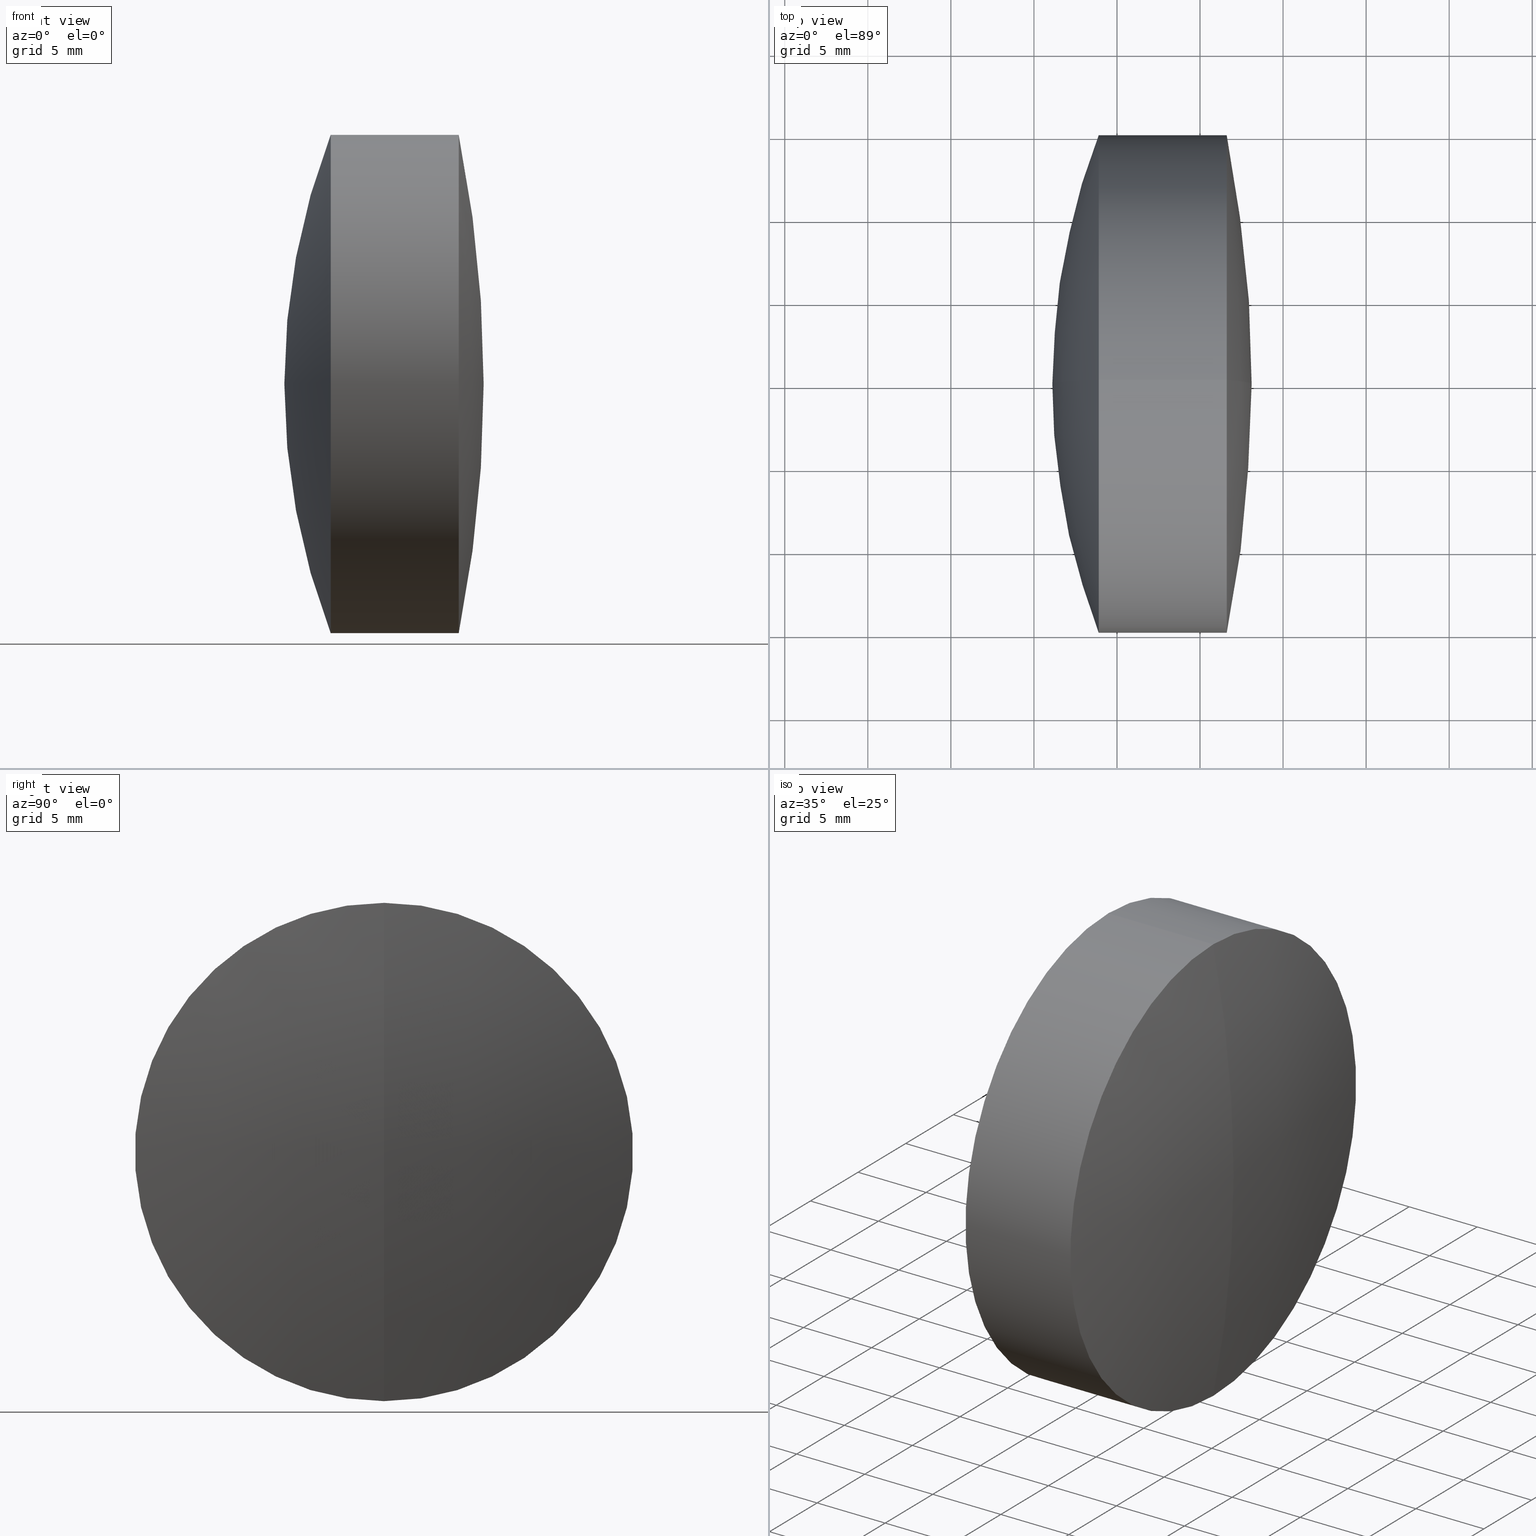
[diagram: canonical four-view strip — front | top / right | iso, engineering-drawing reading convention]
A machine part, canonical four-view strip (front | top / right | iso — engineering-drawing reading convention). The complete STEP part file that produces these views, byte-faithful:
ISO-10303-21;
HEADER;
FILE_DESCRIPTION (( 'STEP AP214' ),
    '1' );
FILE_NAME ('145173.STEP',
    '2019-06-12T02:10:05',
    ( 'user' ),
    ( '΢���й�' ),
    'SwSTEP 2.0',
    'SolidWorks 2016',
    '' );
FILE_SCHEMA (( 'AUTOMOTIVE_DESIGN' ));
ENDSEC;

DATA;
#1 = STYLED_ITEM ( 'NONE', ( #114 ), #171 ) ;
#2 = SURFACE_SIDE_STYLE ('',( #126 ) ) ;
#3 = EDGE_CURVE ( 'NONE', #146, #319, #222, .T. ) ;
#4 = DIRECTION ( 'NONE',  ( 0.0000000000000000000, -1.000000000000000000, 0.0000000000000000000 ) ) ;
#5 = ORIENTED_EDGE ( 'NONE', *, *, #141, .T. ) ;
#6 = DIRECTION ( 'NONE',  ( 0.0000000000000000000, -1.000000000000000000, 0.0000000000000000000 ) ) ;
#7 = DIRECTION ( 'NONE',  ( -1.000000000000000000, -0.0000000000000000000, -0.0000000000000000000 ) ) ;
#8 = DIRECTION ( 'NONE',  ( 0.0000000000000000000, 1.000000000000000000, -0.0000000000000000000 ) ) ;
#9 = CARTESIAN_POINT ( 'NONE',  ( -52.57130196904471100, 0.0000000000000000000, 0.0000000000000000000 ) ) ;
#10 = AXIS2_PLACEMENT_3D ( 'NONE', #324, #6, #102 ) ;
#11 = ORIENTED_EDGE ( 'NONE', *, *, #153, .F. ) ;
#12 = CARTESIAN_POINT ( 'NONE',  ( 52.79869803095530000, 0.0000000000000000000, 1.064787006880972700E-016 ) ) ;
#13 = UNCERTAINTY_MEASURE_WITH_UNIT (LENGTH_MEASURE( 1.000000000000000100E-005 ), #165, 'distance_accuracy_value', 'NONE');
#14 = ORIENTED_EDGE ( 'NONE', *, *, #311, .T. ) ;
#15 = EDGE_CURVE ( 'NONE', #213, #50, #22, .T. ) ;
#16 = COLOUR_RGB ( '',1.000000000000000000, 1.000000000000000000, 1.000000000000000000 ) ;
#17 = UNCERTAINTY_MEASURE_WITH_UNIT (LENGTH_MEASURE( 1.000000000000000100E-005 ), #226, 'distance_accuracy_value', 'NONE');
#18 = AXIS2_PLACEMENT_3D ( 'NONE', #26, #205, #231 ) ;
#19 = CARTESIAN_POINT ( 'NONE',  ( 52.79869803095530000, 0.0000000000000000000, 1.064787006880972700E-016 ) ) ;
#20 = ADVANCED_FACE ( 'NONE', ( #296 ), #313, .T. ) ;
#21 = DIRECTION ( 'NONE',  ( 0.0000000000000000000, 0.0000000000000000000, 1.000000000000000000 ) ) ;
#22 = CIRCLE ( 'NONE', #321, 15.00000000000000200 ) ;
#23 = EDGE_CURVE ( 'NONE', #319, #199, #135, .T. ) ;
#24 = PRODUCT_DEFINITION_FORMATION_WITH_SPECIFIED_SOURCE ( '�κ�', '', #179, .NOT_KNOWN. ) ;
#25 = AXIS2_PLACEMENT_3D ( 'NONE', #19, #200, #117 ) ;
#26 = CARTESIAN_POINT ( 'NONE',  ( -52.57130196904471100, 0.0000000000000000000, 0.0000000000000000000 ) ) ;
#27 = SPHERICAL_SURFACE ( 'NONE', #346, 22.69999999999999900 ) ;
#28 = DIRECTION ( 'NONE',  ( 0.0000000000000000000, 1.000000000000000000, 0.0000000000000000000 ) ) ;
#29 = PRESENTATION_LAYER_ASSIGNMENT (  '', '', ( #72 ) ) ;
#30 = CARTESIAN_POINT ( 'NONE',  ( -1.591301969044699400, 0.0000000000000000000, -1.814584121802784700E-015 ) ) ;
#31 = DIRECTION ( 'NONE',  ( 0.0000000000000000000, 0.0000000000000000000, 1.000000000000000000 ) ) ;
#32 = CARTESIAN_POINT ( 'NONE',  ( -0.5519199926577972300, 0.0000000000000000000, 0.0000000000000000000 ) ) ;
#33 = SPHERICAL_SURFACE ( 'NONE', #233, 75.68000000000002100 ) ;
#34 =( NAMED_UNIT ( * ) SI_UNIT ( $, .STERADIAN. ) SOLID_ANGLE_UNIT ( ) );
#35 = DIRECTION ( 'NONE',  ( 0.0000000000000000000, 1.000000000000000000, 0.0000000000000000000 ) ) ;
#36 = CARTESIAN_POINT ( 'NONE',  ( 52.79869803095530000, 0.0000000000000000000, 1.064787006880972700E-016 ) ) ;
#37 = AXIS2_PLACEMENT_3D ( 'NONE', #174, #35, #42 ) ;
#38 = CARTESIAN_POINT ( 'NONE',  ( -0.5519199926577972300, 0.0000000000000000000, 0.0000000000000000000 ) ) ;
#39 = ORIENTED_EDGE ( 'NONE', *, *, #93, .T. ) ;
#40 = ORIENTED_EDGE ( 'NONE', *, *, #23, .T. ) ;
#41 = CIRCLE ( 'NONE', #132, 15.00000000000000200 ) ;
#42 = DIRECTION ( 'NONE',  ( 0.0000000000000000000, 0.0000000000000000000, 1.000000000000000000 ) ) ;
#43 = CARTESIAN_POINT ( 'NONE',  ( 21.10869803095529900, 0.0000000000000000000, -4.246100047705388600E-016 ) ) ;
#44 = EDGE_CURVE ( 'NONE', #98, #75, #53, .T. ) ;
#45 = PRODUCT_RELATED_PRODUCT_CATEGORY ( 'part', '', ( #179 ) ) ;
#46 = FACE_OUTER_BOUND ( 'NONE', #83, .T. ) ;
#47 = AXIS2_PLACEMENT_3D ( 'NONE', #229, #323, #142 ) ;
#48 = ADVANCED_FACE ( 'NONE', ( #151 ), #241, .T. ) ;
#49 = VECTOR ( 'NONE', #302, 1000.000000000000000 ) ;
#50 = VERTEX_POINT ( 'NONE', #259 ) ;
#51 = CIRCLE ( 'NONE', #108, 15.00000000000000200 ) ;
#52 = ADVANCED_FACE ( 'NONE', ( #46 ), #309, .T. ) ;
#53 = CIRCLE ( 'NONE', #25, 41.68999999999999800 ) ;
#54 = DIRECTION ( 'NONE',  ( -1.000000000000000000, -0.0000000000000000000, -0.0000000000000000000 ) ) ;
#55 = SURFACE_STYLE_FILL_AREA ( #228 ) ;
#56 = ORIENTED_EDGE ( 'NONE', *, *, #44, .T. ) ;
#57 = ORIENTED_EDGE ( 'NONE', *, *, #230, .F. ) ;
#58 = AXIS2_PLACEMENT_3D ( 'NONE', #38, #347, #326 ) ;
#59 =( NAMED_UNIT ( * ) SI_UNIT ( $, .STERADIAN. ) SOLID_ANGLE_UNIT ( ) );
#60 = DIRECTION ( 'NONE',  ( -1.000000000000000000, -0.0000000000000000000, -0.0000000000000000000 ) ) ;
#61 = EDGE_CURVE ( 'NONE', #50, #287, #188, .T. ) ;
#62 = APPLICATION_CONTEXT ( 'automotive_design' ) ;
#63 = ORIENTED_EDGE ( 'NONE', *, *, #141, .F. ) ;
#64 = SURFACE_STYLE_USAGE ( .BOTH. , #278 ) ;
#65 =( NAMED_UNIT ( * ) PLANE_ANGLE_UNIT ( ) SI_UNIT ( $, .RADIAN. ) );
#66 = FILL_AREA_STYLE_COLOUR ( '', #89 ) ;
#67 = DIRECTION ( 'NONE',  ( -0.0000000000000000000, -1.000000000000000000, -0.0000000000000000000 ) ) ;
#68 = ORIENTED_EDGE ( 'NONE', *, *, #281, .F. ) ;
#69 = DIRECTION ( 'NONE',  ( 0.0000000000000000000, 0.0000000000000000000, -1.000000000000000000 ) ) ;
#70 = DIRECTION ( 'NONE',  ( -1.000000000000000000, -0.0000000000000000000, -0.0000000000000000000 ) ) ;
#71 = AXIS2_PLACEMENT_3D ( 'NONE', #12, #67, #94 ) ;
#72 = STYLED_ITEM ( 'NONE', ( #250 ), #182 ) ;
#73 =( LENGTH_UNIT ( ) NAMED_UNIT ( * ) SI_UNIT ( .MILLI., .METRE. ) );
#74 = FACE_OUTER_BOUND ( 'NONE', #155, .T. ) ;
#75 = VERTEX_POINT ( 'NONE', #329 ) ;
#76 = CARTESIAN_POINT ( 'NONE',  ( 21.60728254158073400, 0.0000000000000000000, 0.0000000000000000000 ) ) ;
#77 = ORIENTED_EDGE ( 'NONE', *, *, #3, .T. ) ;
#78 = EDGE_CURVE ( 'NONE', #98, #199, #134, .T. ) ;
#79 =( GEOMETRIC_REPRESENTATION_CONTEXT ( 3 ) GLOBAL_UNCERTAINTY_ASSIGNED_CONTEXT ( ( #13 ) ) GLOBAL_UNIT_ASSIGNED_CONTEXT ( ( #165, #99, #266 ) ) REPRESENTATION_CONTEXT ( 'NONE', 'WORKASPACE' ) );
#80 = ADVANCED_FACE ( 'NONE', ( #74 ), #27, .T. ) ;
#81 = DIRECTION ( 'NONE',  ( 0.0000000000000000000, 0.0000000000000000000, -1.000000000000000000 ) ) ;
#82 = EDGE_LOOP ( 'NONE', ( #91, #284, #256 ) ) ;
#83 = EDGE_LOOP ( 'NONE', ( #144, #56, #244 ) ) ;
#84 = CARTESIAN_POINT ( 'NONE',  ( -0.8160621761658039000, 0.0000000000000000000, 0.0000000000000000000 ) ) ;
#85 = DIRECTION ( 'NONE',  ( -1.000000000000000000, -0.0000000000000000000, -0.0000000000000000000 ) ) ;
#86 = ORIENTED_EDGE ( 'NONE', *, *, #106, .F. ) ;
#87 = CIRCLE ( 'NONE', #277, 14.99999999999999600 ) ;
#88 = MECHANICAL_DESIGN_GEOMETRIC_PRESENTATION_REPRESENTATION (  '', ( #72 ), #251 ) ;
#89 = COLOUR_RGB ( '',1.000000000000000000, 1.000000000000000000, 1.000000000000000000 ) ;
#90 = CARTESIAN_POINT ( 'NONE',  ( -1.591301969044699400, 0.0000000000000000000, -1.814584121802784700E-015 ) ) ;
#91 = ORIENTED_EDGE ( 'NONE', *, *, #44, .F. ) ;
#92 = DIRECTION ( 'NONE',  ( 0.0000000000000000000, 0.0000000000000000000, 1.000000000000000000 ) ) ;
#93 = EDGE_CURVE ( 'NONE', #213, #283, #129, .T. ) ;
#94 = DIRECTION ( 'NONE',  ( 0.0000000000000000000, 0.0000000000000000000, -1.000000000000000000 ) ) ;
#95 = CIRCLE ( 'NONE', #10, 22.69999999999999900 ) ;
#96 = CIRCLE ( 'NONE', #240, 41.68999999999999800 ) ;
#97 = CIRCLE ( 'NONE', #307, 14.99999999999999600 ) ;
#98 = VERTEX_POINT ( 'NONE', #192 ) ;
#99 =( NAMED_UNIT ( * ) PLANE_ANGLE_UNIT ( ) SI_UNIT ( $, .RADIAN. ) );
#100 = ADVANCED_FACE ( 'NONE', ( #118 ), #113, .T. ) ;
#101 = EDGE_CURVE ( 'NONE', #199, #98, #87, .T. ) ;
#102 = DIRECTION ( 'NONE',  ( 0.0000000000000000000, 0.0000000000000000000, -1.000000000000000000 ) ) ;
#103 = AXIS2_PLACEMENT_3D ( 'NONE', #84, #133, #145 ) ;
#104 = ORIENTED_EDGE ( 'NONE', *, *, #15, .T. ) ;
#105 = DIRECTION ( 'NONE',  ( 0.0000000000000000000, 0.0000000000000000000, 1.000000000000000000 ) ) ;
#106 = EDGE_CURVE ( 'NONE', #194, #319, #330, .T. ) ;
#107 = DIRECTION ( 'NONE',  ( 0.0000000000000000000, -1.000000000000000000, -1.224646799147353200E-016 ) ) ;
#108 = AXIS2_PLACEMENT_3D ( 'NONE', #76, #54, #272 ) ;
#109 = FACE_OUTER_BOUND ( 'NONE', #115, .T. ) ;
#110 = ORIENTED_EDGE ( 'NONE', *, *, #230, .T. ) ;
#111 = DIRECTION ( 'NONE',  ( 0.0000000000000000000, 0.0000000000000000000, 1.000000000000000000 ) ) ;
#112 = CARTESIAN_POINT ( 'NONE',  ( 15.44659696245503600, 0.0000000000000000000, 0.0000000000000000000 ) ) ;
#113 = CYLINDRICAL_SURFACE ( 'NONE', #103, 14.99999999999999600 ) ;
#114 = PRESENTATION_STYLE_ASSIGNMENT (( #246 ) ) ;
#115 = EDGE_LOOP ( 'NONE', ( #138, #187, #273 ) ) ;
#116 = CARTESIAN_POINT ( 'NONE',  ( 13.90067623035469100, 0.0000000000000000000, 0.0000000000000000000 ) ) ;
#117 = DIRECTION ( 'NONE',  ( 0.0000000000000000000, 1.224646799147353200E-016, -1.000000000000000000 ) ) ;
#118 = FACE_OUTER_BOUND ( 'NONE', #320, .T. ) ;
#119 = ORIENTED_EDGE ( 'NONE', *, *, #207, .F. ) ;
#120 = CARTESIAN_POINT ( 'NONE',  ( 15.44659696245503600, 1.836970198721029200E-015, -14.99999999999999600 ) ) ;
#121 = FACE_OUTER_BOUND ( 'NONE', #127, .T. ) ;
#122 = DIRECTION ( 'NONE',  ( -0.0000000000000000000, -1.000000000000000000, -0.0000000000000000000 ) ) ;
#123 =( NAMED_UNIT ( * ) PLANE_ANGLE_UNIT ( ) SI_UNIT ( $, .RADIAN. ) );
#124 = AXIS2_PLACEMENT_3D ( 'NONE', #30, #193, #345 ) ;
#125 = DIRECTION ( 'NONE',  ( -0.0000000000000000000, 1.000000000000000000, 1.224646799147353200E-016 ) ) ;
#126 = SURFACE_STYLE_FILL_AREA ( #314 ) ;
#127 = EDGE_LOOP ( 'NONE', ( #157, #5, #206, #325 ) ) ;
#128 = SPHERICAL_SURFACE ( 'NONE', #37, 22.69999999999999900 ) ;
#129 = LINE ( 'NONE', #305, #306 ) ;
#130 = ORIENTED_EDGE ( 'NONE', *, *, #177, .F. ) ;
#131 = ADVANCED_FACE ( 'NONE', ( #109 ), #33, .T. ) ;
#132 = AXIS2_PLACEMENT_3D ( 'NONE', #299, #225, #201 ) ;
#133 = DIRECTION ( 'NONE',  ( -1.000000000000000000, -0.0000000000000000000, -0.0000000000000000000 ) ) ;
#134 = CIRCLE ( 'NONE', #47, 14.99999999999999600 ) ;
#135 = LINE ( 'NONE', #334, #137 ) ;
#136 = AXIS2_PLACEMENT_3D ( 'NONE', #156, #60, #267 ) ;
#137 = VECTOR ( 'NONE', #150, 1000.000000000000000 ) ;
#138 = ORIENTED_EDGE ( 'NONE', *, *, #268, .F. ) ;
#139 = FACE_OUTER_BOUND ( 'NONE', #261, .T. ) ;
#140 = DIRECTION ( 'NONE',  ( 0.0000000000000000000, 0.0000000000000000000, 1.000000000000000000 ) ) ;
#141 = EDGE_CURVE ( 'NONE', #319, #194, #97, .T. ) ;
#142 = DIRECTION ( 'NONE',  ( 0.0000000000000000000, 0.0000000000000000000, 1.000000000000000000 ) ) ;
#143 = AXIS2_PLACEMENT_3D ( 'NONE', #257, #70, #196 ) ;
#144 = ORIENTED_EDGE ( 'NONE', *, *, #101, .T. ) ;
#145 = DIRECTION ( 'NONE',  ( 0.0000000000000000000, 0.0000000000000000000, 1.000000000000000000 ) ) ;
#146 = VERTEX_POINT ( 'NONE', #197 ) ;
#147 = CYLINDRICAL_SURFACE ( 'NONE', #58, 15.00000000000000200 ) ;
#148 = DIRECTION ( 'NONE',  ( -1.000000000000000000, -0.0000000000000000000, -0.0000000000000000000 ) ) ;
#149 = MECHANICAL_DESIGN_GEOMETRIC_PRESENTATION_REPRESENTATION (  '', ( #1 ), #184 ) ;
#150 = DIRECTION ( 'NONE',  ( -1.000000000000000000, -0.0000000000000000000, -0.0000000000000000000 ) ) ;
#151 = FACE_OUTER_BOUND ( 'NONE', #180, .T. ) ;
#152 = CARTESIAN_POINT ( 'NONE',  ( -1.591301969044699400, 0.0000000000000000000, -1.814584121802784700E-015 ) ) ;
#153 = EDGE_CURVE ( 'NONE', #146, #194, #95, .T. ) ;
#154 = PRODUCT_DEFINITION_SHAPE ( 'NONE', 'NONE',  #214 ) ;
#155 = EDGE_LOOP ( 'NONE', ( #208, #300, #63 ) ) ;
#156 = CARTESIAN_POINT ( 'NONE',  ( 15.44659696245503600, 0.0000000000000000000, 0.0000000000000000000 ) ) ;
#157 = ORIENTED_EDGE ( 'NONE', *, *, #23, .F. ) ;
#158 = VERTEX_POINT ( 'NONE', #43 ) ;
#159 = AXIS2_PLACEMENT_3D ( 'NONE', #32, #344, #191 ) ;
#160 = ORIENTED_EDGE ( 'NONE', *, *, #61, .T. ) ;
#161 = ORIENTED_EDGE ( 'NONE', *, *, #275, .T. ) ;
#162 = DIRECTION ( 'NONE',  ( 0.0000000000000000000, 1.224646799147353200E-016, -1.000000000000000000 ) ) ;
#163 = AXIS2_PLACEMENT_3D ( 'NONE', #280, #4, #195 ) ;
#164 = CARTESIAN_POINT ( 'NONE',  ( 13.90067623035469200, 0.0000000000000000000, -14.99999999999999800 ) ) ;
#165 =( LENGTH_UNIT ( ) NAMED_UNIT ( * ) SI_UNIT ( .MILLI., .METRE. ) );
#166 = CARTESIAN_POINT ( 'NONE',  ( 15.44659696245503600, 0.0000000000000000000, 14.99999999999999600 ) ) ;
#167 = DIRECTION ( 'NONE',  ( 0.0000000000000000000, 0.0000000000000000000, 1.000000000000000000 ) ) ;
#168 = ORIENTED_EDGE ( 'NONE', *, *, #15, .F. ) ;
#169 = ORIENTED_EDGE ( 'NONE', *, *, #255, .T. ) ;
#170 = FILL_AREA_STYLE_COLOUR ( '', #16 ) ;
#171 = ADVANCED_BREP_SHAPE_REPRESENTATION ( '145173', ( #262, #182, #269 ), #245 ) ;
#172 = CARTESIAN_POINT ( 'NONE',  ( 15.44659696245504000, 0.0000000000000000000, 15.00000000000000000 ) ) ;
#173 = MECHANICAL_DESIGN_GEOMETRIC_PRESENTATION_REPRESENTATION (  '', ( #343 ), #79 ) ;
#174 = CARTESIAN_POINT ( 'NONE',  ( -1.591301969044699400, 0.0000000000000000000, -1.814584121802784700E-015 ) ) ;
#175 = DIRECTION ( 'NONE',  ( 0.0000000000000000000, 0.0000000000000000000, 1.000000000000000000 ) ) ;
#176 = CARTESIAN_POINT ( 'NONE',  ( 21.60728254158073700, -1.836970198721032300E-015, 15.00000000000002100 ) ) ;
#177 = EDGE_CURVE ( 'NONE', #194, #98, #235, .T. ) ;
#178 = APPLICATION_PROTOCOL_DEFINITION ( 'draft international standard', 'automotive_design', 1998, #248 ) ;
#179 = PRODUCT ( '145173', '145173', '', ( #239 ) ) ;
#180 = EDGE_LOOP ( 'NONE', ( #119, #190, #168 ) ) ;
#181 = PRODUCT_DEFINITION_CONTEXT ( 'detailed design', #62, 'design' ) ;
#182 = MANIFOLD_SOLID_BREP ( '��ת2', #217 ) ;
#183 = ORIENTED_EDGE ( 'NONE', *, *, #311, .F. ) ;
#184 =( GEOMETRIC_REPRESENTATION_CONTEXT ( 3 ) GLOBAL_UNCERTAINTY_ASSIGNED_CONTEXT ( ( #304 ) ) GLOBAL_UNIT_ASSIGNED_CONTEXT ( ( #73, #65, #59 ) ) REPRESENTATION_CONTEXT ( 'NONE', 'WORKASPACE' ) );
#185 = SURFACE_STYLE_USAGE ( .BOTH. , #2 ) ;
#186 = CYLINDRICAL_SURFACE ( 'NONE', #203, 14.99999999999999600 ) ;
#187 = ORIENTED_EDGE ( 'NONE', *, *, #207, .T. ) ;
#188 = LINE ( 'NONE', #234, #49 ) ;
#189 = COLOUR_RGB ( '',1.000000000000000000, 1.000000000000000000, 1.000000000000000000 ) ;
#190 = ORIENTED_EDGE ( 'NONE', *, *, #268, .T. ) ;
#191 = DIRECTION ( 'NONE',  ( 0.0000000000000000000, 0.0000000000000000000, 1.000000000000000000 ) ) ;
#192 = CARTESIAN_POINT ( 'NONE',  ( 13.90067623035469200, -1.836970198721029600E-015, 14.99999999999999800 ) ) ;
#193 = DIRECTION ( 'NONE',  ( -0.0000000000000000000, 1.000000000000000000, 1.224646799147353200E-016 ) ) ;
#194 = VERTEX_POINT ( 'NONE', #166 ) ;
#195 = DIRECTION ( 'NONE',  ( 0.0000000000000000000, 0.0000000000000000000, -1.000000000000000000 ) ) ;
#196 = DIRECTION ( 'NONE',  ( 0.0000000000000000000, 0.0000000000000000000, 1.000000000000000000 ) ) ;
#197 = CARTESIAN_POINT ( 'NONE',  ( 21.10869803095529900, 0.0000000000000000000, -4.246100047705388600E-016 ) ) ;
#198 =( LENGTH_UNIT ( ) NAMED_UNIT ( * ) SI_UNIT ( .MILLI., .METRE. ) );
#199 = VERTEX_POINT ( 'NONE', #164 ) ;
#200 = DIRECTION ( 'NONE',  ( 0.0000000000000000000, -1.000000000000000000, -1.224646799147353200E-016 ) ) ;
#201 = DIRECTION ( 'NONE',  ( 0.0000000000000000000, 0.0000000000000000000, 1.000000000000000000 ) ) ;
#202 = CIRCLE ( 'NONE', #163, 22.69999999999999900 ) ;
#203 = AXIS2_PLACEMENT_3D ( 'NONE', #220, #249, #21 ) ;
#204 = FILL_AREA_STYLE_COLOUR ( '', #189 ) ;
#205 = DIRECTION ( 'NONE',  ( 0.0000000000000000000, 1.000000000000000000, -0.0000000000000000000 ) ) ;
#206 = ORIENTED_EDGE ( 'NONE', *, *, #177, .T. ) ;
#207 = EDGE_CURVE ( 'NONE', #341, #213, #232, .T. ) ;
#208 = ORIENTED_EDGE ( 'NONE', *, *, #3, .F. ) ;
#209 = FACE_OUTER_BOUND ( 'NONE', #292, .T. ) ;
#210 = CARTESIAN_POINT ( 'NONE',  ( -0.8160621761658039000, 0.0000000000000000000, 14.99999999999999600 ) ) ;
#211 = FACE_OUTER_BOUND ( 'NONE', #264, .T. ) ;
#212 = ADVANCED_FACE ( 'NONE', ( #209 ), #258, .F. ) ;
#213 = VERTEX_POINT ( 'NONE', #176 ) ;
#214 = PRODUCT_DEFINITION ( 'δ֪', '', #24, #181 ) ;
#215 = CARTESIAN_POINT ( 'NONE',  ( 0.0000000000000000000, 0.0000000000000000000, 0.0000000000000000000 ) ) ;
#216 = DIRECTION ( 'NONE',  ( 1.000000000000000000, 0.0000000000000000000, 0.0000000000000000000 ) ) ;
#217 = CLOSED_SHELL ( 'NONE', ( #265, #131, #212, #338, #48, #316 ) ) ;
#218 = SURFACE_STYLE_FILL_AREA ( #253 ) ;
#219 = AXIS2_PLACEMENT_3D ( 'NONE', #36, #337, #254 ) ;
#220 = CARTESIAN_POINT ( 'NONE',  ( -0.8160621761658039000, 0.0000000000000000000, 0.0000000000000000000 ) ) ;
#221 = SURFACE_SIDE_STYLE ('',( #55 ) ) ;
#222 = CIRCLE ( 'NONE', #318, 22.69999999999999900 ) ;
#223 = DIRECTION ( 'NONE',  ( -1.000000000000000000, -0.0000000000000000000, -0.0000000000000000000 ) ) ;
#224 = SPHERICAL_SURFACE ( 'NONE', #263, 22.69999999999999900 ) ;
#225 = DIRECTION ( 'NONE',  ( -1.000000000000000000, -0.0000000000000000000, -0.0000000000000000000 ) ) ;
#226 =( LENGTH_UNIT ( ) NAMED_UNIT ( * ) SI_UNIT ( .MILLI., .METRE. ) );
#227 =( NAMED_UNIT ( * ) PLANE_ANGLE_UNIT ( ) SI_UNIT ( $, .RADIAN. ) );
#228 = FILL_AREA_STYLE ('',( #204 ) ) ;
#229 = CARTESIAN_POINT ( 'NONE',  ( 13.90067623035469100, 0.0000000000000000000, 0.0000000000000000000 ) ) ;
#230 = EDGE_CURVE ( 'NONE', #158, #287, #322, .T. ) ;
#231 = DIRECTION ( 'NONE',  ( 0.0000000000000000000, 0.0000000000000000000, 1.000000000000000000 ) ) ;
#232 = CIRCLE ( 'NONE', #340, 75.68000000000002100 ) ;
#233 = AXIS2_PLACEMENT_3D ( 'NONE', #290, #298, #81 ) ;
#234 = CARTESIAN_POINT ( 'NONE',  ( -0.5519199926577972300, 1.836970198721030000E-015, -15.00000000000000200 ) ) ;
#235 = LINE ( 'NONE', #210, #242 ) ;
#236 = CARTESIAN_POINT ( 'NONE',  ( -1.591301969044699400, 0.0000000000000000000, -1.814584121802784700E-015 ) ) ;
#237 = DIRECTION ( 'NONE',  ( 0.0000000000000000000, 1.000000000000000000, 0.0000000000000000000 ) ) ;
#238 = ADVANCED_FACE ( 'NONE', ( #121 ), #186, .T. ) ;
#239 = PRODUCT_CONTEXT ( 'NONE', #248, 'mechanical' ) ;
#240 = AXIS2_PLACEMENT_3D ( 'NONE', #333, #8, #175 ) ;
#241 = SPHERICAL_SURFACE ( 'NONE', #297, 75.68000000000002100 ) ;
#242 = VECTOR ( 'NONE', #295, 1000.000000000000000 ) ;
#243 = CLOSED_SHELL ( 'NONE', ( #288, #100, #52, #20, #238, #80 ) ) ;
#244 = ORIENTED_EDGE ( 'NONE', *, *, #335, .F. ) ;
#245 =( GEOMETRIC_REPRESENTATION_CONTEXT ( 3 ) GLOBAL_UNCERTAINTY_ASSIGNED_CONTEXT ( ( #247 ) ) GLOBAL_UNIT_ASSIGNED_CONTEXT ( ( #198, #123, #34 ) ) REPRESENTATION_CONTEXT ( 'NONE', 'WORKASPACE' ) );
#246 = SURFACE_STYLE_USAGE ( .BOTH. , #221 ) ;
#247 = UNCERTAINTY_MEASURE_WITH_UNIT (LENGTH_MEASURE( 1.000000000000000100E-005 ), #198, 'distance_accuracy_value', 'NONE');
#248 = APPLICATION_CONTEXT ( 'automotive_design' ) ;
#249 = DIRECTION ( 'NONE',  ( -1.000000000000000000, -0.0000000000000000000, -0.0000000000000000000 ) ) ;
#250 = PRESENTATION_STYLE_ASSIGNMENT (( #185 ) ) ;
#251 =( GEOMETRIC_REPRESENTATION_CONTEXT ( 3 ) GLOBAL_UNCERTAINTY_ASSIGNED_CONTEXT ( ( #17 ) ) GLOBAL_UNIT_ASSIGNED_CONTEXT ( ( #226, #227, #327 ) ) REPRESENTATION_CONTEXT ( 'NONE', 'WORKASPACE' ) );
#252 = CARTESIAN_POINT ( 'NONE',  ( -1.591301969044699400, 0.0000000000000000000, -1.814584121802784700E-015 ) ) ;
#253 = FILL_AREA_STYLE ('',( #170 ) ) ;
#254 = DIRECTION ( 'NONE',  ( 0.0000000000000000000, 0.0000000000000000000, -1.000000000000000000 ) ) ;
#255 = EDGE_CURVE ( 'NONE', #158, #283, #202, .T. ) ;
#256 = ORIENTED_EDGE ( 'NONE', *, *, #335, .T. ) ;
#257 = CARTESIAN_POINT ( 'NONE',  ( 15.44659696245504000, 0.0000000000000000000, 0.0000000000000000000 ) ) ;
#258 = SPHERICAL_SURFACE ( 'NONE', #286, 22.69999999999999900 ) ;
#259 = CARTESIAN_POINT ( 'NONE',  ( 21.60728254158073700, 0.0000000000000000000, -15.00000000000002100 ) ) ;
#260 = PRESENTATION_LAYER_ASSIGNMENT (  '', '', ( #343 ) ) ;
#261 = EDGE_LOOP ( 'NONE', ( #11, #77, #86 ) ) ;
#262 = MANIFOLD_SOLID_BREP ( '��ת1', #243 ) ;
#263 = AXIS2_PLACEMENT_3D ( 'NONE', #252, #28, #167 ) ;
#264 = EDGE_LOOP ( 'NONE', ( #57, #169, #14 ) ) ;
#265 = ADVANCED_FACE ( 'NONE', ( #317 ), #301, .T. ) ;
#266 =( NAMED_UNIT ( * ) SI_UNIT ( $, .STERADIAN. ) SOLID_ANGLE_UNIT ( ) );
#267 = DIRECTION ( 'NONE',  ( 0.0000000000000000000, 0.0000000000000000000, 1.000000000000000000 ) ) ;
#268 = EDGE_CURVE ( 'NONE', #341, #50, #293, .T. ) ;
#269 = AXIS2_PLACEMENT_3D ( 'NONE', #215, #105, #216 ) ;
#270 = ORIENTED_EDGE ( 'NONE', *, *, #255, .F. ) ;
#271 = FACE_OUTER_BOUND ( 'NONE', #315, .T. ) ;
#272 = DIRECTION ( 'NONE',  ( 0.0000000000000000000, 0.0000000000000000000, 1.000000000000000000 ) ) ;
#273 = ORIENTED_EDGE ( 'NONE', *, *, #275, .F. ) ;
#274 = ORIENTED_EDGE ( 'NONE', *, *, #106, .T. ) ;
#275 = EDGE_CURVE ( 'NONE', #50, #213, #51, .T. ) ;
#276 = CARTESIAN_POINT ( 'NONE',  ( -52.57130196904471100, 0.0000000000000000000, 0.0000000000000000000 ) ) ;
#277 = AXIS2_PLACEMENT_3D ( 'NONE', #116, #7, #31 ) ;
#278 = SURFACE_SIDE_STYLE ('',( #218 ) ) ;
#279 = CARTESIAN_POINT ( 'NONE',  ( 15.44659696245504000, 1.836970198721029600E-015, -15.00000000000000200 ) ) ;
#280 = CARTESIAN_POINT ( 'NONE',  ( -1.591301969044699400, 0.0000000000000000000, -1.814584121802784700E-015 ) ) ;
#281 = EDGE_CURVE ( 'NONE', #287, #283, #41, .T. ) ;
#282 = DIRECTION ( 'NONE',  ( 0.0000000000000000000, 0.0000000000000000000, 1.000000000000000000 ) ) ;
#283 = VERTEX_POINT ( 'NONE', #172 ) ;
#284 = ORIENTED_EDGE ( 'NONE', *, *, #78, .T. ) ;
#285 = DIRECTION ( 'NONE',  ( 0.0000000000000000000, -1.224646799147353200E-016, 1.000000000000000000 ) ) ;
#286 = AXIS2_PLACEMENT_3D ( 'NONE', #90, #237, #140 ) ;
#287 = VERTEX_POINT ( 'NONE', #279 ) ;
#288 = ADVANCED_FACE ( 'NONE', ( #139 ), #224, .T. ) ;
#289 = PRESENTATION_LAYER_ASSIGNMENT (  '', '', ( #1 ) ) ;
#290 = CARTESIAN_POINT ( 'NONE',  ( -52.57130196904471100, 0.0000000000000000000, 0.0000000000000000000 ) ) ;
#291 = ORIENTED_EDGE ( 'NONE', *, *, #78, .F. ) ;
#292 = EDGE_LOOP ( 'NONE', ( #270, #110, #336 ) ) ;
#293 = CIRCLE ( 'NONE', #18, 75.68000000000002100 ) ;
#294 = EDGE_LOOP ( 'NONE', ( #104, #160, #183, #331 ) ) ;
#295 = DIRECTION ( 'NONE',  ( -1.000000000000000000, -0.0000000000000000000, -0.0000000000000000000 ) ) ;
#296 = FACE_OUTER_BOUND ( 'NONE', #82, .T. ) ;
#297 = AXIS2_PLACEMENT_3D ( 'NONE', #9, #122, #69 ) ;
#298 = DIRECTION ( 'NONE',  ( -0.0000000000000000000, -1.000000000000000000, -0.0000000000000000000 ) ) ;
#299 = CARTESIAN_POINT ( 'NONE',  ( 15.44659696245504000, 0.0000000000000000000, 0.0000000000000000000 ) ) ;
#300 = ORIENTED_EDGE ( 'NONE', *, *, #153, .T. ) ;
#301 = CYLINDRICAL_SURFACE ( 'NONE', #159, 15.00000000000000200 ) ;
#302 = DIRECTION ( 'NONE',  ( -1.000000000000000000, -0.0000000000000000000, -0.0000000000000000000 ) ) ;
#303 = CIRCLE ( 'NONE', #143, 15.00000000000000200 ) ;
#304 = UNCERTAINTY_MEASURE_WITH_UNIT (LENGTH_MEASURE( 1.000000000000000100E-005 ), #73, 'distance_accuracy_value', 'NONE');
#305 = CARTESIAN_POINT ( 'NONE',  ( -0.5519199926577972300, 0.0000000000000000000, 15.00000000000000200 ) ) ;
#306 = VECTOR ( 'NONE', #223, 1000.000000000000000 ) ;
#307 = AXIS2_PLACEMENT_3D ( 'NONE', #112, #85, #282 ) ;
#308 = APPLICATION_PROTOCOL_DEFINITION ( 'draft international standard', 'automotive_design', 1998, #62 ) ;
#309 = SPHERICAL_SURFACE ( 'NONE', #219, 41.68999999999999800 ) ;
#310 = ORIENTED_EDGE ( 'NONE', *, *, #61, .F. ) ;
#311 = EDGE_CURVE ( 'NONE', #283, #287, #303, .T. ) ;
#312 = SHAPE_DEFINITION_REPRESENTATION ( #154, #171 ) ;
#313 = SPHERICAL_SURFACE ( 'NONE', #71, 41.68999999999999800 ) ;
#314 = FILL_AREA_STYLE ('',( #66 ) ) ;
#315 = EDGE_LOOP ( 'NONE', ( #310, #161, #39, #68 ) ) ;
#316 = ADVANCED_FACE ( 'NONE', ( #271 ), #147, .T. ) ;
#317 = FACE_OUTER_BOUND ( 'NONE', #294, .T. ) ;
#318 = AXIS2_PLACEMENT_3D ( 'NONE', #152, #125, #285 ) ;
#319 = VERTEX_POINT ( 'NONE', #120 ) ;
#320 = EDGE_LOOP ( 'NONE', ( #274, #40, #291, #130 ) ) ;
#321 = AXIS2_PLACEMENT_3D ( 'NONE', #332, #148, #92 ) ;
#322 = CIRCLE ( 'NONE', #124, 22.69999999999999900 ) ;
#323 = DIRECTION ( 'NONE',  ( -1.000000000000000000, -0.0000000000000000000, -0.0000000000000000000 ) ) ;
#324 = CARTESIAN_POINT ( 'NONE',  ( -1.591301969044699400, 0.0000000000000000000, -1.814584121802784700E-015 ) ) ;
#325 = ORIENTED_EDGE ( 'NONE', *, *, #101, .F. ) ;
#326 = DIRECTION ( 'NONE',  ( 0.0000000000000000000, 0.0000000000000000000, 1.000000000000000000 ) ) ;
#327 =( NAMED_UNIT ( * ) SI_UNIT ( $, .STERADIAN. ) SOLID_ANGLE_UNIT ( ) );
#328 = CARTESIAN_POINT ( 'NONE',  ( 23.10869803095531300, 0.0000000000000000000, -4.634063487973585500E-015 ) ) ;
#329 = CARTESIAN_POINT ( 'NONE',  ( 11.10869803095530100, 0.0000000000000000000, -2.446297552134560200E-015 ) ) ;
#330 = CIRCLE ( 'NONE', #136, 14.99999999999999600 ) ;
#331 = ORIENTED_EDGE ( 'NONE', *, *, #93, .F. ) ;
#332 = CARTESIAN_POINT ( 'NONE',  ( 21.60728254158073400, 0.0000000000000000000, 0.0000000000000000000 ) ) ;
#333 = CARTESIAN_POINT ( 'NONE',  ( 52.79869803095530000, 0.0000000000000000000, 1.064787006880972700E-016 ) ) ;
#334 = CARTESIAN_POINT ( 'NONE',  ( -0.8160621761658039000, 1.836970198721029200E-015, -14.99999999999999600 ) ) ;
#335 = EDGE_CURVE ( 'NONE', #199, #75, #96, .T. ) ;
#336 = ORIENTED_EDGE ( 'NONE', *, *, #281, .T. ) ;
#337 = DIRECTION ( 'NONE',  ( -0.0000000000000000000, -1.000000000000000000, -0.0000000000000000000 ) ) ;
#338 = ADVANCED_FACE ( 'NONE', ( #211 ), #128, .F. ) ;
#339 = DIRECTION ( 'NONE',  ( 0.0000000000000000000, 1.000000000000000000, 0.0000000000000000000 ) ) ;
#340 = AXIS2_PLACEMENT_3D ( 'NONE', #276, #107, #162 ) ;
#341 = VERTEX_POINT ( 'NONE', #328 ) ;
#342 = PRESENTATION_STYLE_ASSIGNMENT (( #64 ) ) ;
#343 = STYLED_ITEM ( 'NONE', ( #342 ), #262 ) ;
#344 = DIRECTION ( 'NONE',  ( -1.000000000000000000, -0.0000000000000000000, -0.0000000000000000000 ) ) ;
#345 = DIRECTION ( 'NONE',  ( 0.0000000000000000000, -1.224646799147353200E-016, 1.000000000000000000 ) ) ;
#346 = AXIS2_PLACEMENT_3D ( 'NONE', #236, #339, #111 ) ;
#347 = DIRECTION ( 'NONE',  ( -1.000000000000000000, -0.0000000000000000000, -0.0000000000000000000 ) ) ;
ENDSEC;
END-ISO-10303-21;
